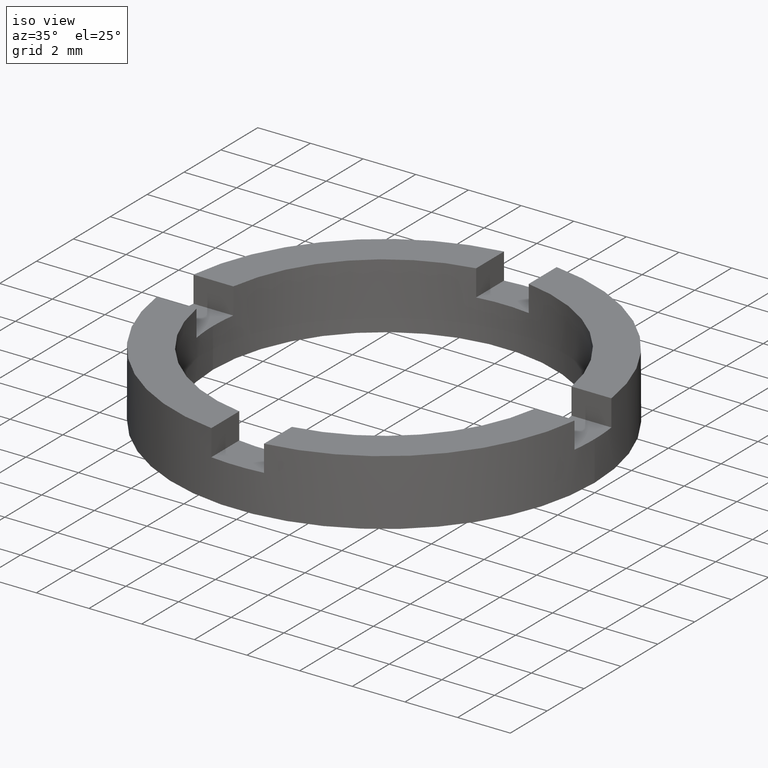
[diagram: clean part render]
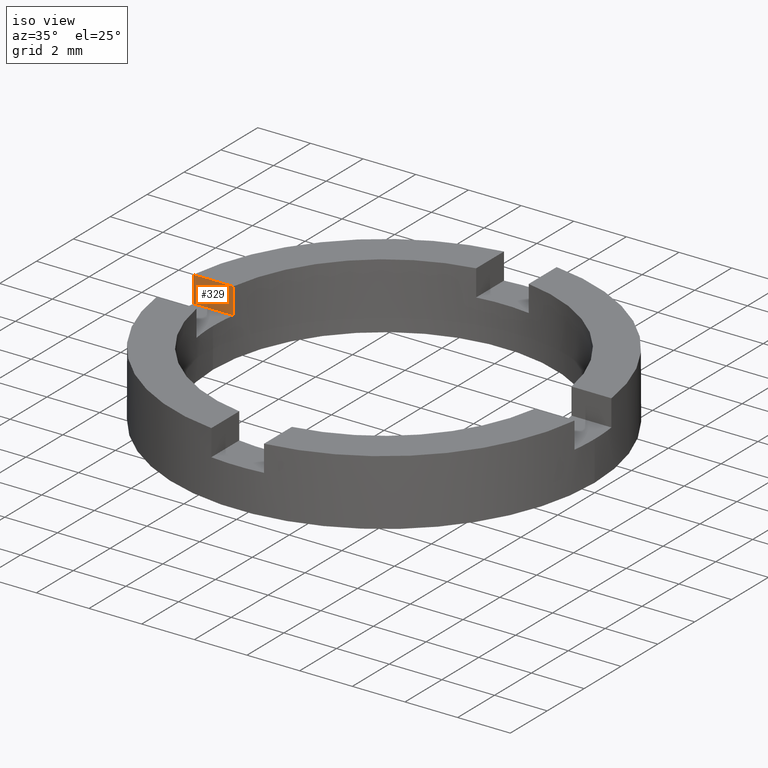
[diagram: same view with one face highlighted and labeled with its STEP entity id]
A machine part, iso view. The second image highlights one B-rep face of the part: STEP entity #329.
In plain terms, the highlighted planar face has unit normal (-0, -1, 0).
Its self-contained STEP definition (entity closure, byte-faithful):
#2 = DIRECTION ( 'NONE',  ( 1.000000000000000000, -3.740497495074990297E-15, 0.000000000000000000 ) ) ;
#25 = CARTESIAN_POINT ( 'NONE',  ( -6.422616289332562012, 1.000000000000023093, 1.500000000000000000 ) ) ;
#29 = CARTESIAN_POINT ( 'NONE',  ( -7.937253933193768596, 1.000000000000028644, 2.500000000000000000 ) ) ;
#94 = PLANE ( 'NONE',  #614 ) ;
#177 = DIRECTION ( 'NONE',  ( -3.740497495074990297E-15, -1.000000000000000000, 0.000000000000000000 ) ) ;
#198 = DIRECTION ( 'NONE',  ( 1.000000000000000000, -3.740497495074990297E-15, 0.000000000000000000 ) ) ;
#211 = ORIENTED_EDGE ( 'NONE', *, *, #695, .F. ) ;
#217 = VERTEX_POINT ( 'NONE', #459 ) ;
#267 = CARTESIAN_POINT ( 'NONE',  ( 3.740497495074986353E-15, 0.9999999999999988898, 1.500000000000000000 ) ) ;
#289 = ORIENTED_EDGE ( 'NONE', *, *, #575, .T. ) ;
#313 = CARTESIAN_POINT ( 'NONE',  ( 3.740497495074986353E-15, 0.9999999999999988898, 2.500000000000000000 ) ) ;
#325 = DIRECTION ( 'NONE',  ( -0.000000000000000000, -0.000000000000000000, 1.000000000000000000 ) ) ;
#329 = ADVANCED_FACE ( 'NONE', ( #412 ), #94, .T. ) ;
#343 = DIRECTION ( 'NONE',  ( 1.000000000000000000, -3.740497495074990297E-15, 0.000000000000000000 ) ) ;
#350 = VERTEX_POINT ( 'NONE', #707 ) ;
#359 = CARTESIAN_POINT ( 'NONE',  ( -6.422616289332562012, 1.000000000000023093, 1.500000000000000000 ) ) ;
#412 = FACE_OUTER_BOUND ( 'NONE', #647, .T. ) ;
#426 = LINE ( 'NONE', #267, #435 ) ;
#435 = VECTOR ( 'NONE', #198, 1000.000000000000000 ) ;
#449 = VECTOR ( 'NONE', #343, 1000.000000000000000 ) ;
#453 = LINE ( 'NONE', #313, #449 ) ;
#456 = LINE ( 'NONE', #25, #732 ) ;
#459 = CARTESIAN_POINT ( 'NONE',  ( -7.937253933193768596, 1.000000000000028644, 1.500000000000000000 ) ) ;
#499 = CARTESIAN_POINT ( 'NONE',  ( 3.740497495074986353E-15, 0.9999999999999988898, 1.500000000000000000 ) ) ;
#560 = CARTESIAN_POINT ( 'NONE',  ( -7.937253933193768596, 1.000000000000028644, 1.500000000000000000 ) ) ;
#561 = ORIENTED_EDGE ( 'NONE', *, *, #768, .T. ) ;
#564 = VERTEX_POINT ( 'NONE', #29 ) ;
#575 = EDGE_CURVE ( 'NONE', #217, #783, #426, .T. ) ;
#614 = AXIS2_PLACEMENT_3D ( 'NONE', #499, #177, #2 ) ;
#647 = EDGE_LOOP ( 'NONE', ( #211, #751, #289, #561 ) ) ;
#695 = EDGE_CURVE ( 'NONE', #564, #350, #453, .T. ) ;
#703 = LINE ( 'NONE', #560, #717 ) ;
#707 = CARTESIAN_POINT ( 'NONE',  ( -6.422616289332562012, 1.000000000000023093, 2.500000000000000000 ) ) ;
#713 = EDGE_CURVE ( 'NONE', #217, #564, #703, .T. ) ;
#717 = VECTOR ( 'NONE', #761, 1000.000000000000000 ) ;
#732 = VECTOR ( 'NONE', #325, 1000.000000000000000 ) ;
#751 = ORIENTED_EDGE ( 'NONE', *, *, #713, .F. ) ;
#761 = DIRECTION ( 'NONE',  ( -0.000000000000000000, -0.000000000000000000, 1.000000000000000000 ) ) ;
#768 = EDGE_CURVE ( 'NONE', #783, #350, #456, .T. ) ;
#783 = VERTEX_POINT ( 'NONE', #359 ) ;